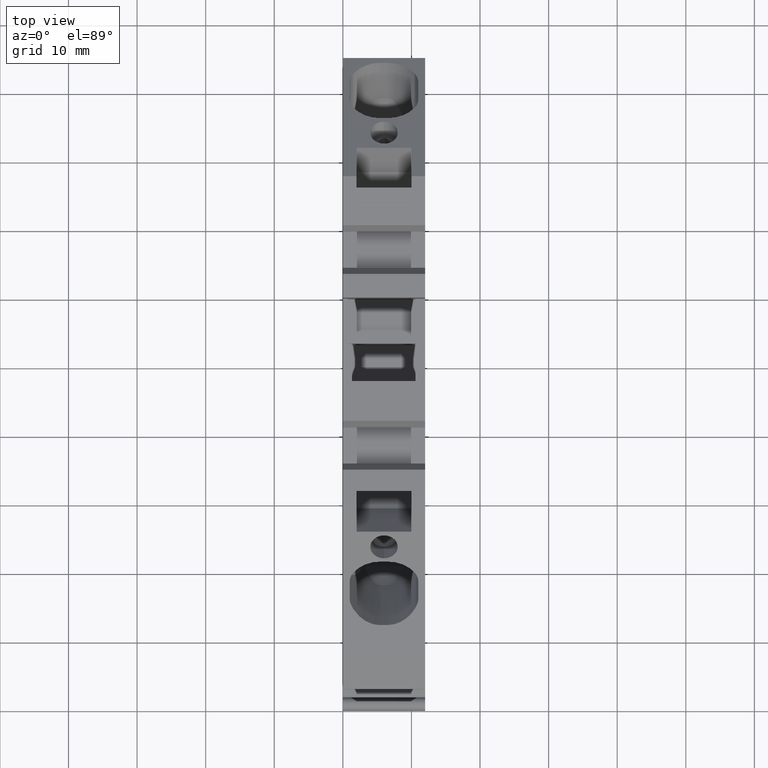
[diagram: clean part render]
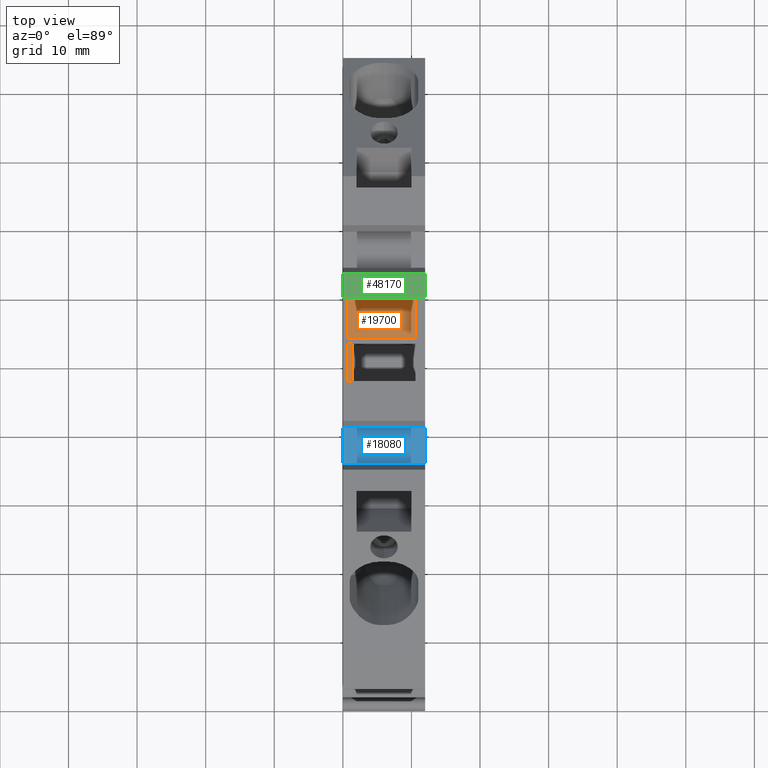
[diagram: same view with three faces highlighted in distinct colors, each labeled with its STEP entity id]
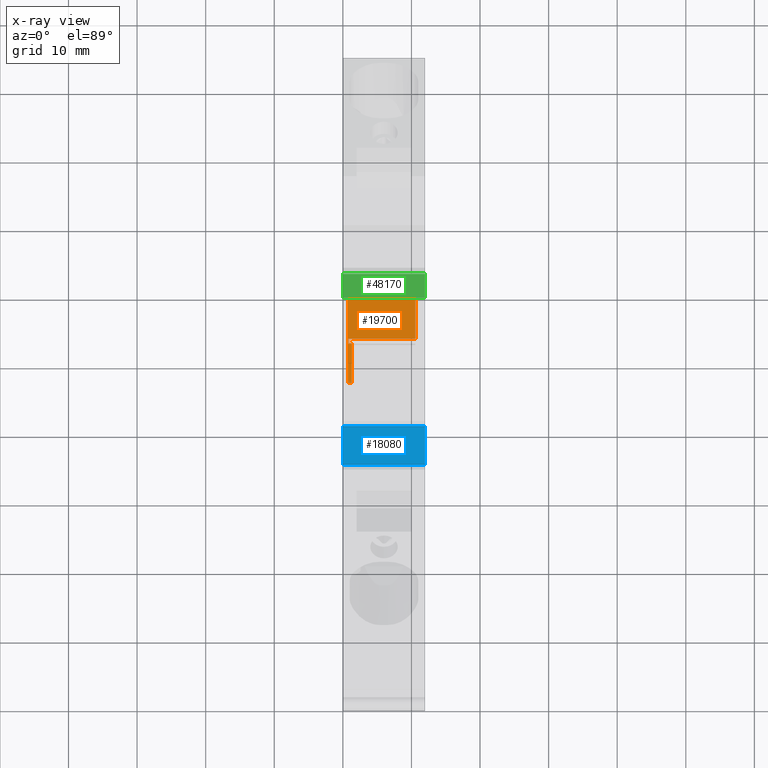
[diagram: x-ray of the same camera — body ghosted, the three highlighted faces saturated]
A machine part, top view with three faces highlighted in distinct colors.
The next image is the same camera in x-ray (body ghosted, the three faces saturated) — at least one of them is partly hidden behind the body in this view.
Their STEP definitions:

[orange] entity #19700 — the highlighted planar face has unit normal (-0, -0, 1).
#18780=CARTESIAN_POINT('',(57.9077552337284,24.9520270181403,51.275));
#18790=VERTEX_POINT('',#18780);
#18820=CARTESIAN_POINT('',(57.9077552337284,24.9520270181403,40.55));
#18830=DIRECTION('',(-8.51383876083514E-18,0.,-1.));
#18840=VECTOR('',#18830,1.);
#18850=LINE('',#18820,#18840);
#18860=CARTESIAN_POINT('',(57.9077552337284,24.9520270181403,41.425));
#18870=VERTEX_POINT('',#18860);
#18880=EDGE_CURVE('',#18790,#18870,#18850,.T.);
#19080=CARTESIAN_POINT('',(51.6577544851319,24.9520270181403,52.39999922
));
#19090=DIRECTION('',(-0.,1.,0.));
#19100=DIRECTION('',(1.,0.,0.));
#19110=AXIS2_PLACEMENT_3D('',#19080,#19090,#19100);
#19120=PLANE('',#19110);
#19130=CARTESIAN_POINT('',(59.036923,24.9520270181403,42.025));
#19140=DIRECTION('',(1.,0.,1.58017632424204E-16));
#19150=VECTOR('',#19140,1.);
#19160=LINE('',#19130,#19150);
#19170=CARTESIAN_POINT('',(45.7077552337284,24.9520270181403,42.025));
#19180=VERTEX_POINT('',#19170);
#19190=CARTESIAN_POINT('',(51.4546774769031,24.9520270181403,42.025));
#19200=VERTEX_POINT('',#19190);
#19210=EDGE_CURVE('',#19180,#19200,#19160,.T.);
#19220=ORIENTED_EDGE('',*,*,#19210,.T.);
#19230=CARTESIAN_POINT('',(45.7077552337284,24.9520270181403,40.55));
#19240=DIRECTION('',(-8.51383876083514E-18,0.,-1.));
#19250=VECTOR('',#19240,1.);
#19260=LINE('',#19230,#19250);
#19270=CARTESIAN_POINT('',(45.7077552337284,24.9520270181403,41.425));
#19280=VERTEX_POINT('',#19270);
#19290=EDGE_CURVE('',#19180,#19280,#19260,.T.);
#19300=ORIENTED_EDGE('',*,*,#19290,.F.);
#19310=CARTESIAN_POINT('',(59.036923,24.9520270181403,41.425));
#19320=DIRECTION('',(-1.,0.,8.51582173330405E-18));
#19330=VECTOR('',#19320,1.);
#19340=LINE('',#19310,#19330);
#19350=EDGE_CURVE('',#18870,#19280,#19340,.T.);
#19360=ORIENTED_EDGE('',*,*,#19350,.T.);
#19370=ORIENTED_EDGE('',*,*,#18880,.T.);
#19380=CARTESIAN_POINT('',(59.036923,24.9520270181403,51.275));
#19390=DIRECTION('',(1.,0.,1.58017632424204E-16));
#19400=VECTOR('',#19390,1.);
#19410=LINE('',#19380,#19400);
#19420=CARTESIAN_POINT('',(52.1577544851318,24.9520270181403,51.275));
#19430=VERTEX_POINT('',#19420);
#19440=EDGE_CURVE('',#19430,#18790,#19410,.T.);
#19450=ORIENTED_EDGE('',*,*,#19440,.T.);
#19460=CARTESIAN_POINT('',(52.1577544851318,24.9520270181403,40.55));
#19470=DIRECTION('',(6.06081325816645E-19,0.,-1.));
#19480=VECTOR('',#19470,1.);
#19490=LINE('',#19460,#19480);
#19500=CARTESIAN_POINT('',(52.1577544851318,24.9520270181403,
41.490000268));
#19510=VERTEX_POINT('',#19500);
#19520=EDGE_CURVE('',#19430,#19510,#19490,.T.);
#19530=ORIENTED_EDGE('',*,*,#19520,.F.);
#19540=CARTESIAN_POINT('',(59.036923,24.9520270181403,41.4900006414406))
;
#19550=DIRECTION('',(-0.999999999999999,0.,-5.42857137026351E-8));
#19560=VECTOR('',#19550,1.);
#19570=LINE('',#19540,#19560);
#19580=CARTESIAN_POINT('',(51.4546774769031,24.9520270181403,
41.490000229833));
#19590=VERTEX_POINT('',#19580);
#19600=EDGE_CURVE('',#19510,#19590,#19570,.T.);
#19610=ORIENTED_EDGE('',*,*,#19600,.F.);
#19620=CARTESIAN_POINT('',(51.4546774769031,24.9520270181403,40.55));
#19630=DIRECTION('',(1.58017631728602E-16,0.,-1.));
#19640=VECTOR('',#19630,1.);
#19650=LINE('',#19620,#19640);
#19660=EDGE_CURVE('',#19200,#19590,#19650,.T.);
#19670=ORIENTED_EDGE('',*,*,#19660,.T.);
#19680=EDGE_LOOP('',(#19670,#19610,#19530,#19450,#19370,#19360,#19300,
#19220));
#19690=FACE_OUTER_BOUND('',#19680,.T.);
#19700=ADVANCED_FACE('',(#19690),#19120,.T.);

[blue] entity #18080 — the highlighted planar face has unit normal (0, -0, -1).
#3340=CARTESIAN_POINT('',(33.4952553391659,37.2145391844908,52.7));
#3350=VERTEX_POINT('',#3340);
#3380=CARTESIAN_POINT('',(59.0472152574142,37.2145389710325,52.7));
#3390=DIRECTION('',(1.,-8.35389248055041E-9,-8.51383876083514E-18));
#3400=VECTOR('',#3390,1.);
#3410=LINE('',#3380,#3400);
#3420=CARTESIAN_POINT('',(39.2202553391659,37.2145391366648,52.7));
#3430=VERTEX_POINT('',#3420);
#3440=EDGE_CURVE('',#3350,#3430,#3410,.T.);
#6790=CARTESIAN_POINT('',(39.2202553391659,37.2145391366648,40.7));
#6800=VERTEX_POINT('',#6790);
#6830=CARTESIAN_POINT('',(59.0369232670009,37.2145389711185,40.7));
#6840=DIRECTION('',(1.,-8.35389248055041E-9,-8.51383876083512E-18));
#6850=VECTOR('',#6840,1.);
#6860=LINE('',#6830,#6850);
#6870=CARTESIAN_POINT('',(33.4952553391659,37.2145391844908,40.7));
#6880=VERTEX_POINT('',#6870);
#6890=EDGE_CURVE('',#6880,#6800,#6860,.T.);
#17870=CARTESIAN_POINT('',(32.6952553391661,37.2145391911739,40.2));
#17880=DIRECTION('',(-8.35389248055041E-9,-1.,-2.77555765481604E-17));
#17890=DIRECTION('',(-1.,8.35389248055041E-9,8.51383876083514E-18));
#17900=AXIS2_PLACEMENT_3D('',#17870,#17880,#17890);
#17910=PLANE('',#17900);
#17920=CARTESIAN_POINT('',(33.4952553391659,37.2145391844908,40.55));
#17930=DIRECTION('',(8.51383852896804E-18,-2.77555766192841E-17,1.));
#17940=VECTOR('',#17930,1.);
#17950=LINE('',#17920,#17940);
#17960=EDGE_CURVE('',#6880,#3350,#17950,.T.);
#17970=ORIENTED_EDGE('',*,*,#17960,.T.);
#17980=ORIENTED_EDGE('',*,*,#6890,.F.);
#17990=CARTESIAN_POINT('',(39.2202553391659,37.2145391366648,40.55));
#18000=DIRECTION('',(8.51383852896804E-18,-2.77555766192841E-17,1.));
#18010=VECTOR('',#18000,1.);
#18020=LINE('',#17990,#18010);
#18030=EDGE_CURVE('',#6800,#3430,#18020,.T.);
#18040=ORIENTED_EDGE('',*,*,#18030,.F.);
#18050=ORIENTED_EDGE('',*,*,#3440,.T.);
#18060=EDGE_LOOP('',(#18050,#18040,#17980,#17970));
#18070=FACE_OUTER_BOUND('',#18060,.T.);
#18080=ADVANCED_FACE('',(#18070),#17910,.F.);

[green] entity #48170 — the highlighted planar face has unit normal (-0, 0, 1).
#3980=CARTESIAN_POINT('',(57.9077553626642,40.3862506205514,52.7));
#3990=VERTEX_POINT('',#3980);
#4020=CARTESIAN_POINT('',(59.0472152839103,40.3862506110325,52.7));
#4030=DIRECTION('',(-1.,8.35389248055041E-9,8.51383876083514E-18));
#4040=VECTOR('',#4030,1.);
#4050=LINE('',#4020,#4040);
#4060=CARTESIAN_POINT('',(61.3477552182577,40.386250591814,52.7));
#4070=VERTEX_POINT('',#4060);
#4080=EDGE_CURVE('',#4070,#3990,#4050,.T.);
#6150=CARTESIAN_POINT('',(61.3477552182577,40.386250591814,40.7));
#6160=VERTEX_POINT('',#6150);
#6190=CARTESIAN_POINT('',(59.036923293497,40.3862506111185,40.7));
#6200=DIRECTION('',(-1.,8.35389248055041E-9,8.51383876083512E-18));
#6210=VECTOR('',#6200,1.);
#6220=LINE('',#6190,#6210);
#6230=CARTESIAN_POINT('',(57.9077553626642,40.3862506205514,40.7));
#6240=VERTEX_POINT('',#6230);
#6250=EDGE_CURVE('',#6160,#6240,#6220,.T.);
#18590=CARTESIAN_POINT('',(57.9077553626642,40.3862506205514,40.55));
#18600=DIRECTION('',(-8.51383852896804E-18,2.77555766192841E-17,-1.));
#18610=VECTOR('',#18600,1.);
#18620=LINE('',#18590,#18610);
#18630=EDGE_CURVE('',#3990,#6240,#18620,.T.);
#47870=CARTESIAN_POINT('',(61.3477552182577,40.386250591814,40.55));
#47880=DIRECTION('',(8.51383852896804E-18,-2.77555766192841E-17,1.));
#47890=VECTOR('',#47880,1.);
#47900=LINE('',#47870,#47890);
#47910=EDGE_CURVE('',#6160,#4070,#47900,.T.);
#48060=CARTESIAN_POINT('',(59.4077553626621,40.3862506080206,53.2));
#48070=DIRECTION('',(8.35389248055041E-9,1.,2.77555765481604E-17));
#48080=DIRECTION('',(1.,-8.35389248055041E-9,-8.51383876083514E-18));
#48090=AXIS2_PLACEMENT_3D('',#48060,#48070,#48080);
#48100=PLANE('',#48090);
#48110=ORIENTED_EDGE('',*,*,#6250,.T.);
#48120=ORIENTED_EDGE('',*,*,#47910,.F.);
#48130=ORIENTED_EDGE('',*,*,#4080,.F.);
#48140=ORIENTED_EDGE('',*,*,#18630,.F.);
#48150=EDGE_LOOP('',(#48140,#48130,#48120,#48110));
#48160=FACE_OUTER_BOUND('',#48150,.T.);
#48170=ADVANCED_FACE('',(#48160),#48100,.T.);